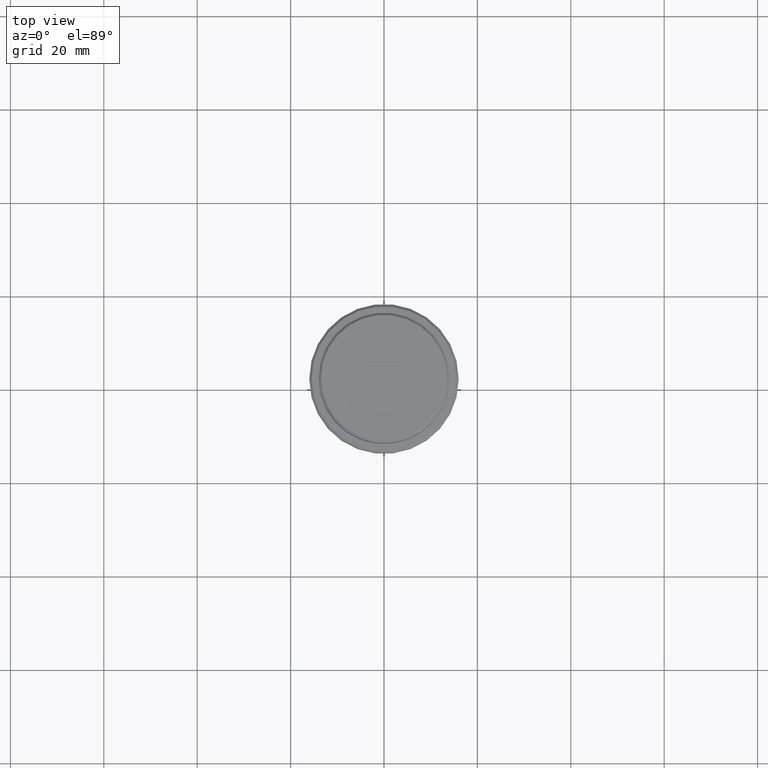
[diagram: clean part render]
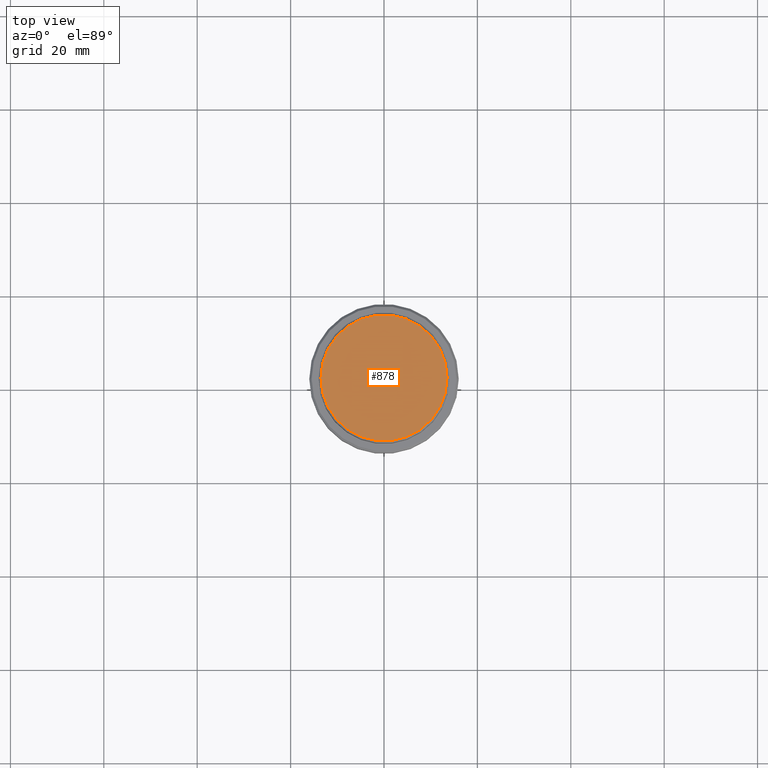
[diagram: same view with one face highlighted and labeled with its STEP entity id]
A machine part, top view. The second image highlights one B-rep face of the part: STEP entity #878.
In plain terms, the highlighted planar face has unit normal (0, -0, 1).
Its self-contained STEP definition (entity closure, byte-faithful):
#118 = CIRCLE ( 'NONE', #1068, 13.49999999999998401 ) ;
#138 = CIRCLE ( 'NONE', #195, 13.49999999999998401 ) ;
#147 = DIRECTION ( 'NONE',  ( -0.000000000000000000, -0.000000000000000000, 1.000000000000000000 ) ) ;
#171 = CARTESIAN_POINT ( 'NONE',  ( 0.000000000000000000, 0.000000000000000000, 0.000000000000000000 ) ) ;
#195 = AXIS2_PLACEMENT_3D ( 'NONE', #397, #406, #634 ) ;
#267 = DIRECTION ( 'NONE',  ( 1.000000000000000000, 0.000000000000000000, 0.000000000000000000 ) ) ;
#330 = CARTESIAN_POINT ( 'NONE',  ( 0.000000000000000000, 0.000000000000000000, 0.000000000000000000 ) ) ;
#397 = CARTESIAN_POINT ( 'NONE',  ( 0.000000000000000000, 0.000000000000000000, 0.000000000000000000 ) ) ;
#406 = DIRECTION ( 'NONE',  ( -0.000000000000000000, -0.000000000000000000, 1.000000000000000000 ) ) ;
#519 = CARTESIAN_POINT ( 'NONE',  ( 13.49999999999998401, 1.683889348827609273E-15, 0.000000000000000000 ) ) ;
#603 = EDGE_CURVE ( 'NONE', #992, #622, #138, .T. ) ;
#622 = VERTEX_POINT ( 'NONE', #1282 ) ;
#634 = DIRECTION ( 'NONE',  ( 1.000000000000000000, 0.000000000000000000, 0.000000000000000000 ) ) ;
#726 = EDGE_CURVE ( 'NONE', #622, #992, #118, .T. ) ;
#784 = EDGE_LOOP ( 'NONE', ( #1382, #1104 ) ) ;
#878 = ADVANCED_FACE ( 'NONE', ( #1054 ), #1033, .T. ) ;
#938 = DIRECTION ( 'NONE',  ( 0.000000000000000000, -0.000000000000000000, 1.000000000000000000 ) ) ;
#992 = VERTEX_POINT ( 'NONE', #519 ) ;
#1033 = PLANE ( 'NONE',  #1142 ) ;
#1054 = FACE_OUTER_BOUND ( 'NONE', #784, .T. ) ;
#1068 = AXIS2_PLACEMENT_3D ( 'NONE', #330, #147, #1182 ) ;
#1104 = ORIENTED_EDGE ( 'NONE', *, *, #603, .T. ) ;
#1142 = AXIS2_PLACEMENT_3D ( 'NONE', #171, #938, #267 ) ;
#1182 = DIRECTION ( 'NONE',  ( 1.000000000000000000, 0.000000000000000000, 0.000000000000000000 ) ) ;
#1282 = CARTESIAN_POINT ( 'NONE',  ( -13.49999999999998401, 0.000000000000000000, 0.000000000000000000 ) ) ;
#1382 = ORIENTED_EDGE ( 'NONE', *, *, #726, .T. ) ;